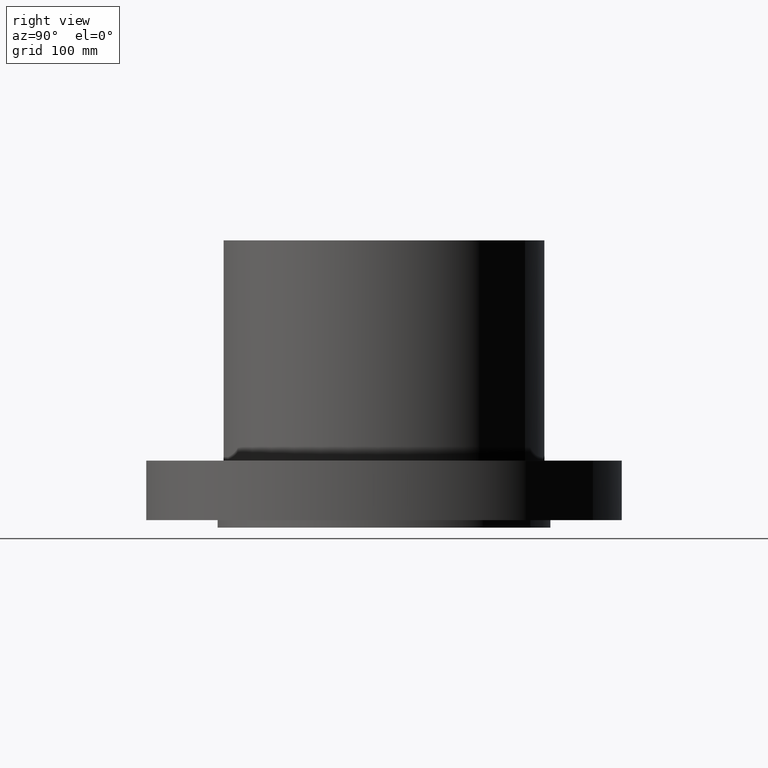
[diagram: clean part render]
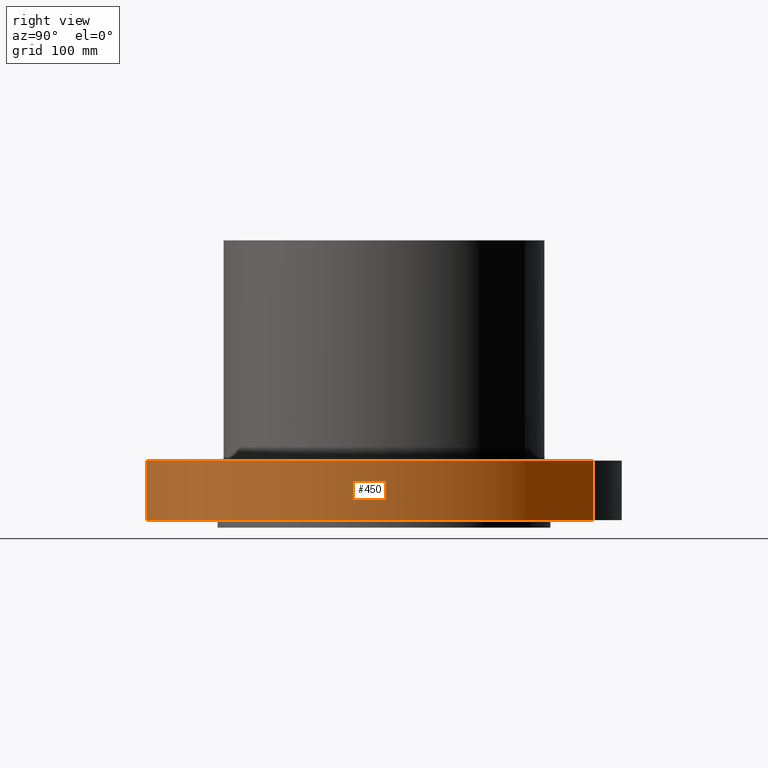
[diagram: same view with one face highlighted and labeled with its STEP entity id]
A machine part, right view. The second image highlights one B-rep face of the part: STEP entity #450.
In plain terms, the highlighted cylindrical surface (partial cylindrical patch) has radius 254 mm, axis along (0, 0, -1).
Its self-contained STEP definition (entity closure, byte-faithful):
#91=AXIS2_PLACEMENT_3D('Circle Axis2P3D',#89,#90,$) ;
#411=AXIS2_PLACEMENT_3D('Cylinder Axis2P3D',#408,#409,#410) ;
#441=AXIS2_PLACEMENT_3D('Circle Axis2P3D',#439,#440,$) ;
#84=CARTESIAN_POINT('Vertex',(-4.79425538606,-8.77582561894,1.1189649382E-015)) ;
#86=CARTESIAN_POINT('Vertex',(4.79425538606,8.77582561894,1.1189649382E-015)) ;
#89=CARTESIAN_POINT('Axis2P3D Location',(0.,0.,0.)) ;
#408=CARTESIAN_POINT('Axis2P3D Location',(0.,0.,5.71850000002)) ;
#413=CARTESIAN_POINT('Line Origine',(-4.79425538606,-8.77582561894,1.25000000001)) ;
#417=CARTESIAN_POINT('Vertex',(-4.79425538606,-8.77582561894,2.50000000001)) ;
#424=CARTESIAN_POINT('Vertex',(4.79425538606,8.77582561894,2.50000000001)) ;
#427=CARTESIAN_POINT('Line Origine',(4.79425538606,8.77582561894,1.25000000001)) ;
#439=CARTESIAN_POINT('Axis2P3D Location',(0.,0.,2.50000000001)) ;
#90=DIRECTION('Axis2P3D Direction',(0.,0.,-0.0393700787402)) ;
#409=DIRECTION('Axis2P3D Direction',(0.,0.,-0.0393700787402)) ;
#410=DIRECTION('Axis2P3D XDirection',(0.0188750212049,0.0345504945626,0.)) ;
#414=DIRECTION('Vector Direction',(0.,0.,-0.0393700787402)) ;
#428=DIRECTION('Vector Direction',(0.,0.,-0.0393700787402)) ;
#440=DIRECTION('Axis2P3D Direction',(0.,0.,-0.0393700787402)) ;
#415=VECTOR('Line Direction',#414,0.0393700787402) ;
#429=VECTOR('Line Direction',#428,0.0393700787402) ;
#445=ORIENTED_EDGE('',*,*,#93,.F.) ;
#446=ORIENTED_EDGE('',*,*,#431,.T.) ;
#447=ORIENTED_EDGE('',*,*,#443,.T.) ;
#448=ORIENTED_EDGE('',*,*,#419,.F.) ;
#450=ADVANCED_FACE('PartBody',(#449),#412,.T.) ;
#92=CIRCLE('generated circle',#91,10.) ;
#442=CIRCLE('generated circle',#441,10.) ;
#412=CYLINDRICAL_SURFACE('generated cylinder',#411,10.) ;
#93=EDGE_CURVE('',#87,#85,#92,.T.) ;
#419=EDGE_CURVE('',#85,#418,#416,.F.) ;
#431=EDGE_CURVE('',#87,#425,#430,.F.) ;
#443=EDGE_CURVE('',#425,#418,#442,.T.) ;
#444=EDGE_LOOP('',(#445,#446,#447,#448)) ;
#449=FACE_OUTER_BOUND('',#444,.T.) ;
#416=LINE('Line',#413,#415) ;
#430=LINE('Line',#427,#429) ;
#85=VERTEX_POINT('',#84) ;
#87=VERTEX_POINT('',#86) ;
#418=VERTEX_POINT('',#417) ;
#425=VERTEX_POINT('',#424) ;